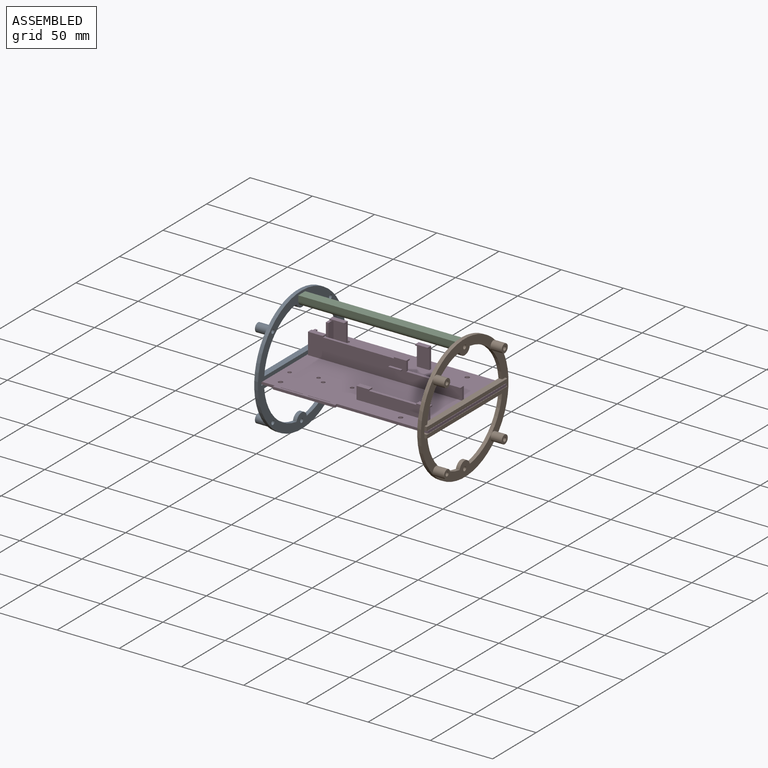
[diagram: assembled view]
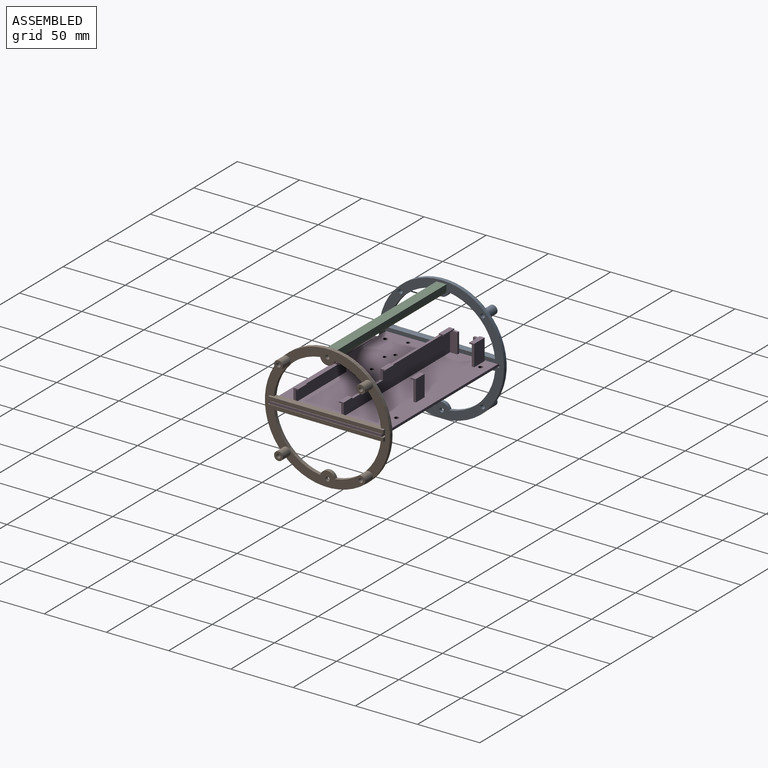
[diagram: assembled view, second angle]
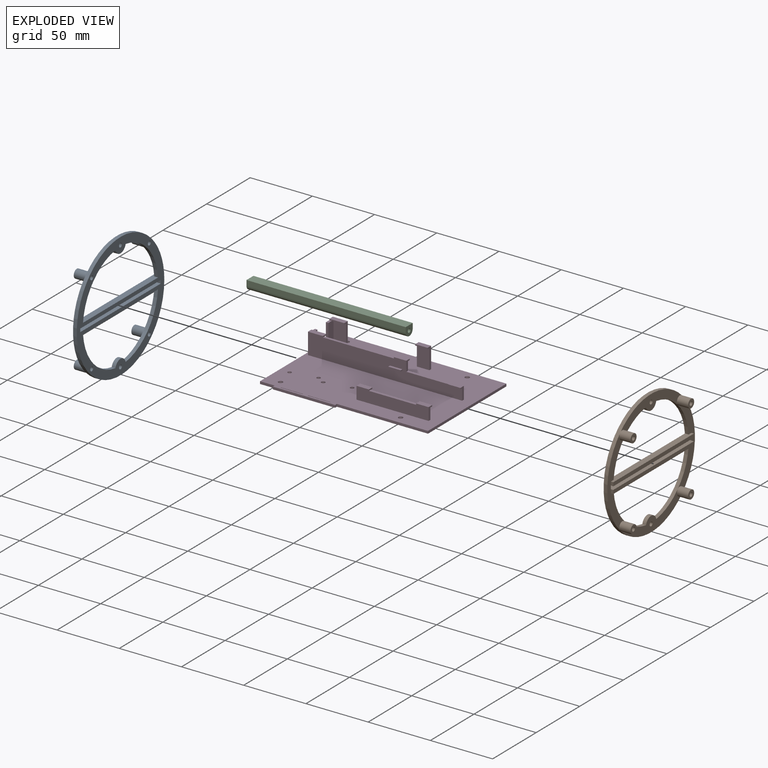
[diagram: exploded view]
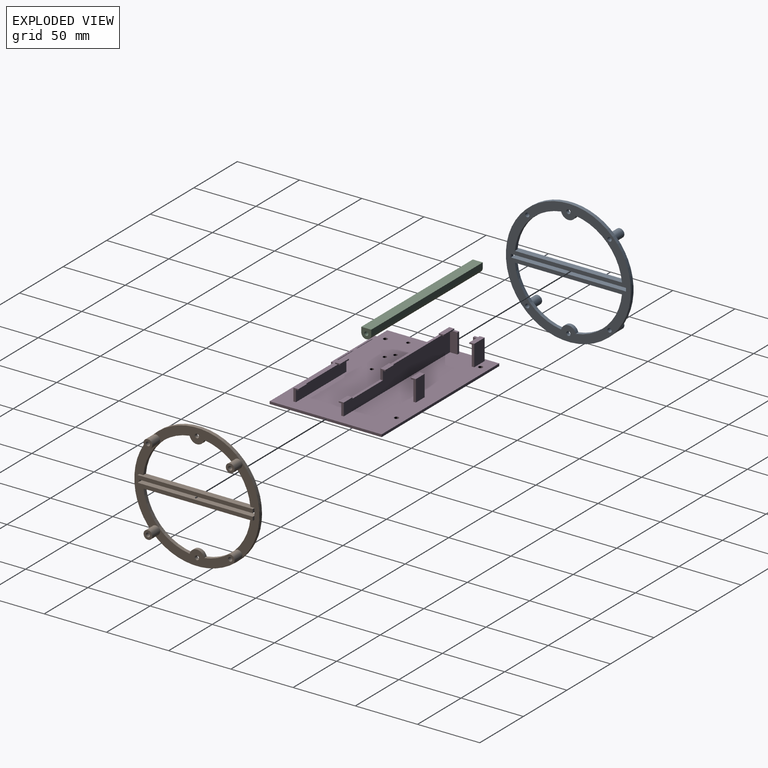
[diagram: exploded view, second angle]
ASSEMBLY  parts=4 mates=3
PART A: 38 faces, bbox 100.5x12x100.5 mm
  f0: plane 71.06x19.67mm, normal (0,1,0), area 510mm2, adj f7,f21,f22,f23,f28,f30,f37
  f1: plane 71.06x19.67mm, normal (0,1,0), area 449.1mm2, adj f5,f7,f11,f12,f14,f15,f19,f22
  f2: plane 71.06x19.67mm, normal (0,1,0), area 449.1mm2, adj f7,f8,f10,f12,f14,f16,f20,f23
  f3: plane 100.5x100.5mm, normal (0,-1,0), area 2593.1mm2, adj f4,f5,f6,f7,f8,f12,f14,f18
  f4: plane 92.5x5mm, normal (0,0,-1), area 462.5mm2, adj f3,f5,f8,f10,f11,f13
  f5: plane 3x2.6mm, normal (-1,0,0), area 7.8mm2, adj f1,f3,f4,f6
  f6: plane 92.5x5mm, normal (0,0,1), area 462.5mm2, adj f3,f5,f8,f15,f16,f17
  f7: cylinder r=50.25mm len=100.5mm, axis (0,1,0), area 947.2mm2, adj f0,f1,f2,f3,f9
  f8: plane 3x2.6mm, normal (1,0,0), area 7.8mm2, adj f2,f3,f4,f6
  f9: plane 71.06x19.67mm, normal (0,1,0), area 510mm2, adj f7,f18,f19,f20,f24,f26,f34
  f10: plane 3x2mm, normal (-1,0,0), area 6mm2, adj f2,f4,f12,f13
  f11: plane 3x2mm, normal (1,0,0), area 6mm2, adj f1,f4,f12,f13
  f12: plane 92.5x5mm, normal (0,0,1), area 443.2mm2, adj f1,f2,f3,f10,f11,f13,f22,f23
  f13: plane 92.5x3mm, normal (0,1,0), area 277.5mm2, adj f4,f10,f11,f12
  f14: plane 92.5x5mm, normal (0,0,-1), area 443.2mm2, adj f1,f2,f3,f15,f16,f17,f19,f20
  f15: plane 3x2mm, normal (1,0,0), area 6mm2, adj f1,f6,f14,f17
  f16: plane 3x2mm, normal (-1,0,0), area 6mm2, adj f2,f6,f14,f17
  f17: plane 92.5x3mm, normal (0,1,0), area 277.5mm2, adj f6,f14,f15,f16
  f18: cylinder r=6mm len=11.67mm, axis (0,-1,0), area 48.1mm2, adj f3,f9,f19,f20
  f19: cylinder r=43.25mm len=38.55mm, axis (0,-1,0), area 173.3mm2, adj f1,f3,f9,f14,f18
  f20: cylinder r=43.25mm len=38.55mm, axis (0,-1,0), area 173.3mm2, adj f2,f3,f9,f14,f18
  f21: cylinder r=6mm len=11.67mm, axis (0,-1,0), area 48.1mm2, adj f0,f3,f22,f23
  f22: cylinder r=43.25mm len=38.55mm, axis (0,-1,0), area 173.3mm2, adj f0,f1,f3,f12,f21
  f23: cylinder r=43.25mm len=38.55mm, axis (0,-1,0), area 173.3mm2, adj f0,f2,f3,f12,f21
  f24: cylinder r=3.5mm len=9mm, axis (0,-1,0), area 197.9mm2, adj f2,f9,f25
  f25: plane 7x7mm, normal (0,1,0), area 29.9mm2, adj f24,f32
  f26: cylinder r=3.5mm len=9mm, axis (0,-1,0), area 197.9mm2, adj f1,f9,f27
  f27: plane 7x7mm, normal (0,1,0), area 29.9mm2, adj f26,f33
  f28: cylinder r=3.5mm len=9mm, axis (0,-1,0), area 197.9mm2, adj f0,f2,f29
  f29: plane 7x7mm, normal (0,1,0), area 29.9mm2, adj f28,f35
  f30: cylinder r=3.5mm len=9mm, axis (0,-1,0), area 197.9mm2, adj f0,f1,f31
  f31: plane 7x7mm, normal (0,1,0), area 29.9mm2, adj f30,f36
  f32: cylinder r=1.65mm len=12mm, axis (0,-1,0), area 124.4mm2, adj f3,f25
  f33: cylinder r=1.65mm len=12mm, axis (0,-1,0), area 124.4mm2, adj f3,f27
  f34: cylinder r=1.65mm len=3.3mm, axis (0,-1,0), area 31.1mm2, adj f3,f9
  f35: cylinder r=1.65mm len=12mm, axis (0,-1,0), area 124.4mm2, adj f3,f29
  f36: cylinder r=1.65mm len=12mm, axis (0,-1,0), area 124.4mm2, adj f3,f31
  f37: cylinder r=1.65mm len=3.3mm, axis (0,-1,0), area 31.1mm2, adj f0,f3
PART B: same geometry as A
PART C: 10 faces, bbox 8x8x128 mm
  f0: plane 128x4mm, normal (-1,0,0), area 512mm2, adj f1,f3,f4,f9
  f1: plane 128x8mm, normal (0,-1,0), area 1024mm2, adj f0,f2,f3,f4
  f2: plane 128x4mm, normal (1,0,0), area 512mm2, adj f1,f3,f4,f9
  f3: plane 8x8mm, normal (0,0,-1), area 49.3mm2, adj f0,f1,f2,f7,f9
  f4: plane 8x8mm, normal (0,0,1), area 49.3mm2, adj f0,f1,f2,f5,f9
  f5: cylinder r=1.57mm len=15mm, axis (0,0,1), area 148.4mm2, adj f4,f6
  f6: cone r=0mm half-angle=59deg, axis (0,0,1), area 9.1mm2, adj f5
  f7: cylinder r=1.57mm len=15mm, axis (0,0,-1), area 148.4mm2, adj f3,f8
  f8: cone r=0mm half-angle=59deg, axis (0,0,-1), area 9.1mm2, adj f7
  f9: cylinder r=4mm len=128mm, axis (0,0,-1), area 1608.5mm2, adj f0,f2,f3,f4
PART D: 83 faces, bbox 135x92x19 mm
  f0: plane 38x2mm, normal (0,0,1), area 76mm2, adj f25,f27,f67,f71
  f1: plane 4x2mm, normal (0,0,1), area 8mm2, adj f30,f31,f32,f63
  f2: plane 57x2mm, normal (0,0,1), area 114mm2, adj f21,f23,f60,f64
  f3: plane 135x92mm, normal (0,0,1), area 11737mm2, adj f4,f5,f6,f7,f8,f9,f10,f11
  f4: plane 2x0.4mm, normal (-1,0,0), area 0.8mm2, adj f3,f5,f19,f20
  f5: plane 18x2mm, normal (0,1,0), area 36mm2, adj f3,f4,f6,f20
  f6: plane 2x0.4mm, normal (1,0,0), area 0.8mm2, adj f3,f5,f19,f20
  f7: plane 135x2mm, normal (0,-1,0), area 270mm2, adj f3,f8,f17,f20
  f8: plane 90x2mm, normal (1,0,0), area 180mm2, adj f3,f7,f9,f20
  f9: plane 11.75x2mm, normal (0,1,0), area 23.5mm2, adj f3,f8,f10,f20
  f10: plane 2x2mm, normal (1,0,0), area 4mm2, adj f3,f9,f11,f20
  f11: plane 50x2mm, normal (0,1,0), area 100mm2, adj f3,f10,f12,f20
  f12: plane 2x2mm, normal (-1,0,0), area 4mm2, adj f3,f11,f13,f20
  f13: plane 73.25x2mm, normal (0,1,0), area 146.5mm2, adj f3,f12,f17,f20
  f14: plane 18x2mm, normal (0,1,0), area 36mm2, adj f3,f15,f18,f20
  f15: plane 2x0.4mm, normal (1,0,0), area 0.8mm2, adj f3,f14,f16,f20
  f16: plane 18x2mm, normal (0,-1,0), area 36mm2, adj f3,f15,f18,f20
  f17: plane 90x2mm, normal (-1,0,0), area 180mm2, adj f3,f7,f13,f20
  f18: plane 2x0.4mm, normal (-1,0,0), area 0.8mm2, adj f3,f14,f16,f20
  f19: plane 18x2mm, normal (0,-1,0), area 36mm2, adj f3,f4,f6,f20
  f20: plane 135x92mm, normal (0,0,-1), area 12168.8mm2, adj f4,f5,f6,f7,f8,f9,f10,f11
  f21: plane 123.91x17mm, normal (0,1,0), area 1680.2mm2, adj f2,f3,f22,f24,f29,f32,f60,f61
  f22: plane 10x4mm, normal (-1,0,0), area 22mm2, adj f3,f21,f23,f74,f76,f77
  f23: plane 121.91x16mm, normal (0,-1,0), area 1646.2mm2, adj f2,f3,f22,f24,f29,f30,f58,f62
  f24: plane 34.91x2mm, normal (0,0,1), area 69.8mm2, adj f21,f23,f29,f75
  f25: plane 58x9mm, normal (0,-1,0), area 522mm2, adj f0,f3,f26,f28,f66,f70
  f26: plane 10x4mm, normal (1,0,0), area 22mm2, adj f3,f25,f27,f70,f72,f73
  f27: plane 58x10mm, normal (0,1,0), area 542mm2, adj f0,f3,f26,f28,f67,f69,f71,f73
  f28: plane 10x4mm, normal (-1,0,0), area 22mm2, adj f3,f25,f27,f66,f68,f69
  f29: plane 8x4mm, normal (-1,0,0), area 18mm2, adj f21,f23,f24,f58,f59,f61
  f30: plane 16x6mm, normal (-1,0,0), area 96mm2, adj f1,f3,f23,f31,f62
  f31: plane 16x2mm, normal (0,-1,0), area 32mm2, adj f1,f3,f30,f32
  f32: plane 17x8mm, normal (1,0,0), area 132mm2, adj f1,f3,f21,f31,f63,f65
  f33: plane 17x12mm, normal (0,-1,0), area 204mm2, adj f3,f34,f38,f56
  f34: plane 17x8mm, normal (1,0,0), area 132mm2, adj f3,f33,f35,f39,f55,f56
  f35: plane 16x2mm, normal (0,1,0), area 32mm2, adj f3,f34,f36,f39
  f36: plane 16x6mm, normal (-1,0,0), area 96mm2, adj f3,f35,f37,f39,f57
  f37: plane 16x10mm, normal (0,1,0), area 160mm2, adj f3,f36,f38,f57
  f38: plane 17x4mm, normal (-1,0,0), area 36mm2, adj f3,f33,f37,f55,f56,f57
  f39: plane 4x2mm, normal (0,0,1), area 8mm2, adj f34,f35,f36,f55
  f40: plane 16x10mm, normal (0,1,0), area 160mm2, adj f3,f41,f43,f54
  f41: plane 17x4mm, normal (-1,0,0), area 36mm2, adj f3,f40,f42,f52,f53,f54
  f42: plane 17x10mm, normal (0,-1,0), area 170mm2, adj f3,f41,f43,f53
  f43: plane 17x4mm, normal (1,0,0), area 36mm2, adj f3,f40,f42,f52,f53,f54
  f44: cylinder r=1.75mm len=3.5mm, axis (0,0,1), area 22mm2, adj f3,f20
  f45: cylinder r=1.75mm len=3.5mm, axis (0,0,1), area 22mm2, adj f3,f20
  f46: cylinder r=1.75mm len=3.5mm, axis (0,0,1), area 22mm2, adj f3,f20
  f47: cylinder r=1.75mm len=3.5mm, axis (0,0,1), area 22mm2, adj f3,f20
  f48: cylinder r=1.5mm len=3mm, axis (0,0,1), area 18.8mm2, adj f3,f20
  f49: cylinder r=1.5mm len=3mm, axis (0,0,1), area 18.8mm2, adj f3,f20
  f50: cylinder r=1.5mm len=3mm, axis (0,0,1), area 18.8mm2, adj f3,f20
  f51: cylinder r=1.5mm len=3mm, axis (0,0,1), area 18.8mm2, adj f3,f20
  f52: plane 10x1mm, normal (0,1,0), area 10mm2, adj f41,f43,f53,f54
  f53: plane 10x4mm, normal (0,0,1), area 40mm2, adj f41,f42,f43,f52
  f54: plane 10x2mm, normal (0,0,-1), area 20mm2, adj f40,f41,f43,f52
  f55: plane 12x1mm, normal (0,1,0), area 12mm2, adj f34,f38,f39,f56,f57
  f56: plane 12x4mm, normal (0,0,1), area 48mm2, adj f33,f34,f38,f55
  f57: plane 10x2mm, normal (0,0,-1), area 20mm2, adj f36,f37,f38,f55
  f58: plane 10x2mm, normal (0,0,-1), area 20mm2, adj f23,f29,f59,f60
  f59: plane 10x1mm, normal (0,-1,0), area 10mm2, adj f29,f58,f60,f61
  f60: plane 4x1mm, normal (1,0,0), area 4mm2, adj f2,f21,f58,f59,f61
  f61: plane 10x4mm, normal (0,0,1), area 40mm2, adj f21,f29,f59,f60
  f62: plane 10x2mm, normal (0,0,-1), area 20mm2, adj f23,f30,f63,f64
  f63: plane 12x1mm, normal (0,-1,0), area 12mm2, adj f1,f32,f62,f64,f65
  f64: plane 4x1mm, normal (-1,0,0), area 4mm2, adj f2,f21,f62,f63,f65
  f65: plane 12x4mm, normal (0,0,1), area 48mm2, adj f21,f32,f63,f64
  f66: plane 10x2mm, normal (0,0,-1), area 20mm2, adj f25,f28,f67,f68
  f67: plane 4x1mm, normal (1,0,0), area 4mm2, adj f0,f27,f66,f68,f69
  f68: plane 10x1mm, normal (0,-1,0), area 10mm2, adj f28,f66,f67,f69
  f69: plane 10x4mm, normal (0,0,1), area 40mm2, adj f27,f28,f67,f68
  f70: plane 10x2mm, normal (0,0,-1), area 20mm2, adj f25,f26,f71,f72
  f71: plane 4x1mm, normal (-1,0,0), area 4mm2, adj f0,f27,f70,f72,f73
  f72: plane 10x1mm, normal (0,-1,0), area 10mm2, adj f26,f70,f71,f73
  f73: plane 10x4mm, normal (0,0,1), area 40mm2, adj f26,f27,f71,f72
  f74: plane 10x1mm, normal (0,1,0), area 10mm2, adj f22,f75,f76,f77
  f75: plane 4x1mm, normal (1,0,0), area 4mm2, adj f23,f24,f74,f76,f77
  f76: plane 10x4mm, normal (0,0,1), area 40mm2, adj f22,f23,f74,f75
  f77: plane 10x2mm, normal (0,0,-1), area 20mm2, adj f21,f22,f74,f75
  f78: plane 10x1mm, normal (0,1,0), area 10mm2, adj f79,f80,f81,f82
  f79: plane 2x1mm, normal (-1,0,0), area 2mm2, adj f21,f78,f81,f82
  f80: plane 2x1mm, normal (1,0,0), area 2mm2, adj f21,f78,f81,f82
  f81: plane 10x2mm, normal (0,0,1), area 20mm2, adj f21,f78,f79,f80
  f82: plane 10x2mm, normal (0,0,-1), area 20mm2, adj f21,f78,f79,f80
PLACE A rot(axis=(0,0,1),90deg) t=(3.09,43.5,-98.51)mm
PLACE B rot(axis=(0.71,0.71,0),180deg) t=(137.09,43.5,-98.51)mm
PLACE C rot(axis=(-0.58,0.58,-0.58),120deg) t=(134.09,43.78,-66.62)mm
PLACE D rot(axis=(0,0,-1),180deg) t=(75.85,34.5,-97.51)mm
MATE fastened D.f17 <-> B.f7  axis (1,0,0) through (139.09,43.5,-98.51)mm
MATE fastened C.f5 <-> B.f18  axis (1,0,0) through (134.09,43.5,-54.26)mm
MATE fastened D.f8 <-> A.f7  axis (-1,0,0) through (4.09,43.5,-98.51)mm
